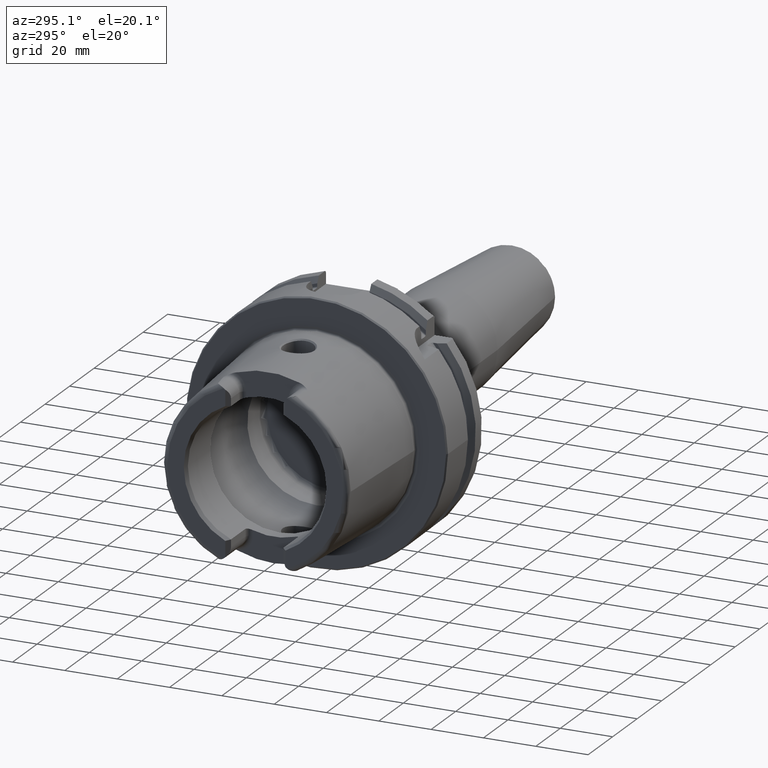
[diagram: clean part render]
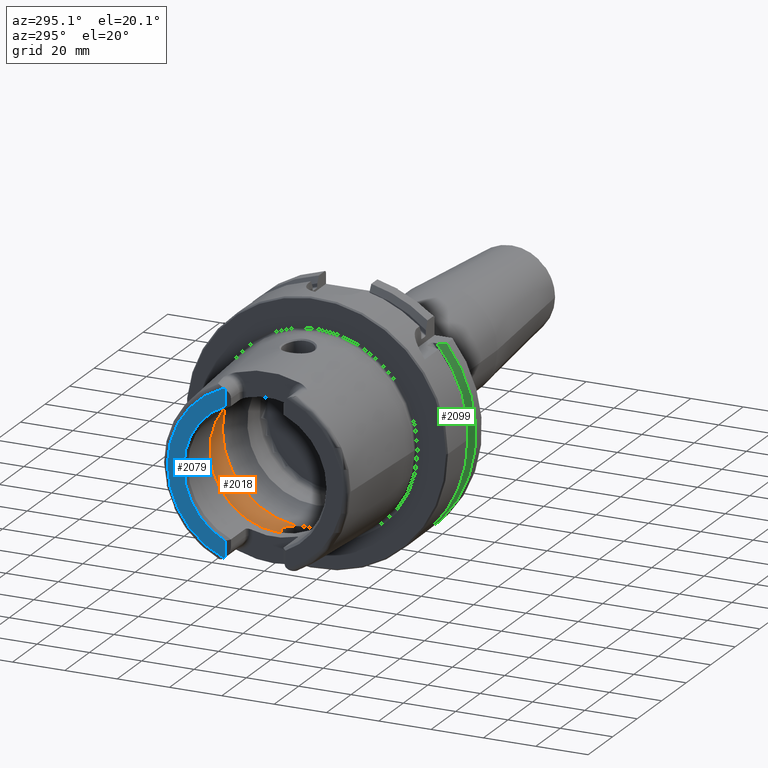
[diagram: same view with three faces highlighted in distinct colors, each labeled with its STEP entity id]
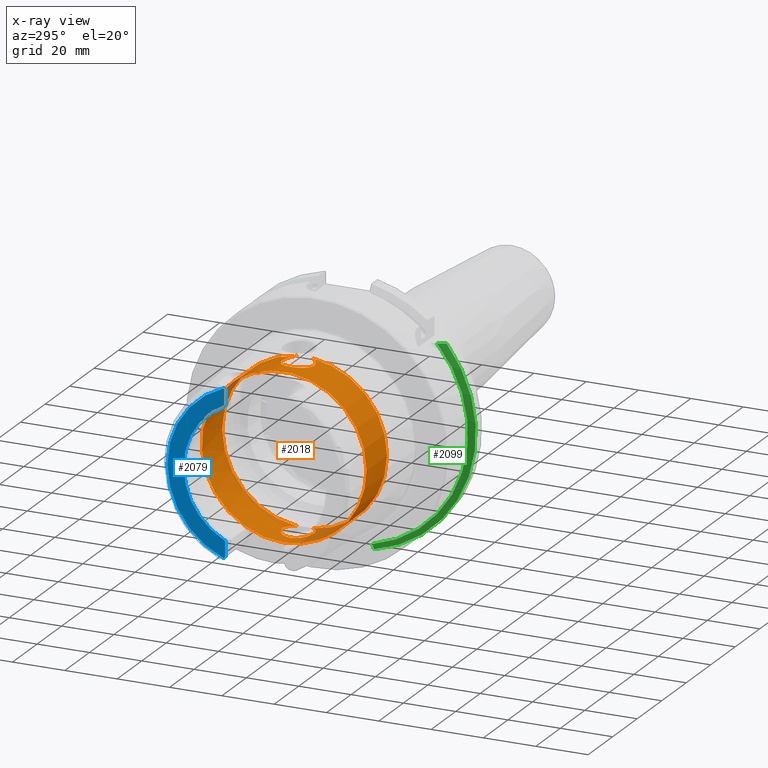
[diagram: x-ray of the same camera — body ghosted, the three highlighted faces saturated]
A machine part, auxiliary view with three faces highlighted in distinct colors.
The next image is the same camera in x-ray (body ghosted, the three faces saturated) — at least one of them is partly hidden behind the body in this view.
Their STEP definitions:

[orange] entity #2018 — the highlighted cylindrical surface (bore or boss wall) has radius 31.5 mm, axis along (-1, 0, 0).
#49=B_SPLINE_CURVE_WITH_KNOTS('',3,(#3595,#3596,#3597,#3598,#3599,#3600,
#3601,#3602,#3603,#3604,#3605,#3606,#3607,#3608,#3609,#3610,#3611,#3612,
#3613,#3614,#3615,#3616,#3617,#3618,#3619,#3620,#3621,#3622,#3623,#3624,
#3625),.UNSPECIFIED.,.F.,.F.,(4,2,2,2,2,2,2,2,2,2,2,3,2,2,4),(-2.42966289251045,
-2.26609494287567,-2.03948128472637,-1.81286762657707,-1.58625396842777,
-1.35964031027847,-1.1330370617835,-0.906433813288535,-0.679830564793567,
-0.453227316298599,-0.226613658149299,0.,0.2266136581493,0.453227316298599,
0.616795265988555),.UNSPECIFIED.);
#54=B_SPLINE_CURVE_WITH_KNOTS('',3,(#3787,#3788,#3789,#3790,#3791,#3792,
#3793,#3794,#3795,#3796,#3797,#3798,#3799,#3800,#3801,#3802,#3803,#3804,
#3805,#3806,#3807,#3808,#3809,#3810,#3811,#3812,#3813,#3814,#3815,#3816,
#3817),.UNSPECIFIED.,.F.,.F.,(4,2,2,3,2,2,2,2,2,2,2,2,2,2,4),(-0.616795265933374,
-0.453227316298598,-0.226613658149299,0.,0.2266136581493,0.453227316298599,
0.679830564793567,0.906433813288535,1.1330370617835,1.35964031027847,1.58625396842777,
1.81286762657707,2.03948128472637,2.26609494287567,2.42966289256562),
 .UNSPECIFIED.);
#183=CYLINDRICAL_SURFACE('',#2211,31.5);
#243=FACE_OUTER_BOUND('',#371,.T.);
#371=EDGE_LOOP('',(#1516,#1517,#1518,#1519,#1520,#1521,#1522,#1523,#1524));
#504=LINE('',#3833,#612);
#612=VECTOR('',#2604,31.5);
#719=CIRCLE('',#2212,31.5);
#720=CIRCLE('',#2213,31.5);
#721=CIRCLE('',#2214,31.5);
#722=CIRCLE('',#2215,31.5);
#723=CIRCLE('',#2216,31.5);
#894=VERTEX_POINT('',#3583);
#895=VERTEX_POINT('',#3594);
#898=VERTEX_POINT('',#3774);
#900=VERTEX_POINT('',#3786);
#901=VERTEX_POINT('',#3830);
#902=VERTEX_POINT('',#3832);
#903=VERTEX_POINT('',#3834);
#1127=EDGE_CURVE('',#895,#894,#49,.T.);
#1133=EDGE_CURVE('',#900,#898,#54,.T.);
#1136=EDGE_CURVE('',#901,#898,#719,.T.);
#1137=EDGE_CURVE('',#901,#902,#504,.T.);
#1138=EDGE_CURVE('',#902,#903,#720,.T.);
#1139=EDGE_CURVE('',#903,#902,#721,.T.);
#1140=EDGE_CURVE('',#895,#901,#722,.T.);
#1141=EDGE_CURVE('',#900,#894,#723,.T.);
#1516=ORIENTED_EDGE('',*,*,#1133,.T.);
#1517=ORIENTED_EDGE('',*,*,#1136,.F.);
#1518=ORIENTED_EDGE('',*,*,#1137,.T.);
#1519=ORIENTED_EDGE('',*,*,#1138,.T.);
#1520=ORIENTED_EDGE('',*,*,#1139,.T.);
#1521=ORIENTED_EDGE('',*,*,#1137,.F.);
#1522=ORIENTED_EDGE('',*,*,#1140,.F.);
#1523=ORIENTED_EDGE('',*,*,#1127,.T.);
#1524=ORIENTED_EDGE('',*,*,#1141,.F.);
#2018=ADVANCED_FACE('',(#243),#183,.F.);
#2211=AXIS2_PLACEMENT_3D('',#3829,#2600,#2601);
#2212=AXIS2_PLACEMENT_3D('',#3831,#2602,#2603);
#2213=AXIS2_PLACEMENT_3D('',#3835,#2605,#2606);
#2214=AXIS2_PLACEMENT_3D('',#3836,#2607,#2608);
#2215=AXIS2_PLACEMENT_3D('',#3837,#2609,#2610);
#2216=AXIS2_PLACEMENT_3D('',#3838,#2611,#2612);
#2600=DIRECTION('center_axis',(-1.,0.,0.));
#2601=DIRECTION('ref_axis',(0.,1.,0.));
#2602=DIRECTION('center_axis',(-1.,0.,0.));
#2603=DIRECTION('ref_axis',(0.,0.,1.));
#2604=DIRECTION('',(-1.,0.,0.));
#2605=DIRECTION('center_axis',(-1.,0.,0.));
#2606=DIRECTION('ref_axis',(0.,0.,1.));
#2607=DIRECTION('center_axis',(-1.,0.,0.));
#2608=DIRECTION('ref_axis',(0.,0.,1.));
#2609=DIRECTION('center_axis',(-1.,0.,0.));
#2610=DIRECTION('ref_axis',(0.,0.,1.));
#2611=DIRECTION('center_axis',(-1.,0.,0.));
#2612=DIRECTION('ref_axis',(0.,0.,1.));
#3583=CARTESIAN_POINT('',(-9.74679434480896,2.89893607109041,-31.3663222207471));
#3594=CARTESIAN_POINT('',(-9.74679434480896,-2.89893607109041,-31.3663222207471));
#3595=CARTESIAN_POINT('Ctrl Pts',(-9.74679434480898,-2.8989360710904,-31.3663222207471));
#3596=CARTESIAN_POINT('Ctrl Pts',(-10.0245557799842,-3.40227174537722,-31.3198029657389));
#3597=CARTESIAN_POINT('Ctrl Pts',(-10.3735944692601,-3.85887584349869,-31.2651415110221));
#3598=CARTESIAN_POINT('Ctrl Pts',(-11.289042660848,-4.77432403508655,-31.140708727458));
#3599=CARTESIAN_POINT('Ctrl Pts',(-11.9624834305428,-5.23577180141274,-31.0633803744766));
#3600=CARTESIAN_POINT('Ctrl Pts',(-13.4401908644727,-5.84865855662958,-30.9538382316308));
#3601=CARTESIAN_POINT('Ctrl Pts',(-14.2446211395023,-6.00000000000001,-30.9232921921325));
#3602=CARTESIAN_POINT('Ctrl Pts',(-15.7553788604977,-6.00000000000001,-30.9232921921325));
#3603=CARTESIAN_POINT('Ctrl Pts',(-16.5598091355273,-5.84865855662958,-30.9538382316308));
#3604=CARTESIAN_POINT('Ctrl Pts',(-18.0375165694572,-5.23577180141275,-31.0633803744766));
#3605=CARTESIAN_POINT('Ctrl Pts',(-18.710957339152,-4.77432403508655,-31.140708727458));
#3606=CARTESIAN_POINT('Ctrl Pts',(-19.7742996118461,-3.71098176239249,-31.2852440928545));
#3607=CARTESIAN_POINT('Ctrl Pts',(-20.2357665181958,-3.03753058698362,-31.3619556484746));
#3608=CARTESIAN_POINT('Ctrl Pts',(-20.8486671603361,-1.55978711209124,-31.4700797313679));
#3609=CARTESIAN_POINT('Ctrl Pts',(-21.,-0.755344161649895,-31.5));
#3610=CARTESIAN_POINT('Ctrl Pts',(-21.,0.755344161649892,-31.5));
#3611=CARTESIAN_POINT('Ctrl Pts',(-20.8486671603361,1.55978711209124,-31.4700797313679));
#3612=CARTESIAN_POINT('Ctrl Pts',(-20.2357665181958,3.03753058698362,-31.3619556484746));
#3613=CARTESIAN_POINT('Ctrl Pts',(-19.7742996118461,3.71098176239249,-31.2852440928545));
#3614=CARTESIAN_POINT('Ctrl Pts',(-18.710957339152,4.77432403508655,-31.140708727458));
#3615=CARTESIAN_POINT('Ctrl Pts',(-18.0375165694572,5.23577180141274,-31.0633803744766));
#3616=CARTESIAN_POINT('Ctrl Pts',(-16.5598091355273,5.84865855662958,-30.9538382316308));
#3617=CARTESIAN_POINT('Ctrl Pts',(-15.7553788604977,6.00000000000001,-30.9232921921325));
#3618=CARTESIAN_POINT('Ctrl Pts',(-15.,6.00000000000001,-30.9232921921325));
#3619=CARTESIAN_POINT('Ctrl Pts',(-14.2446211395023,6.00000000000001,-30.9232921921325));
#3620=CARTESIAN_POINT('Ctrl Pts',(-13.4401908644727,5.84865855662958,-30.9538382316308));
#3621=CARTESIAN_POINT('Ctrl Pts',(-11.9624834305428,5.23577180141274,-31.0633803744766));
#3622=CARTESIAN_POINT('Ctrl Pts',(-11.289042660848,4.77432403508655,-31.140708727458));
#3623=CARTESIAN_POINT('Ctrl Pts',(-10.3735944691306,3.85887584336922,-31.2651415110397));
#3624=CARTESIAN_POINT('Ctrl Pts',(-10.0245557801354,3.40227174565105,-31.3198029657135));
#3625=CARTESIAN_POINT('Ctrl Pts',(-9.74679434480898,2.8989360710904,-31.3663222207471));
#3774=CARTESIAN_POINT('',(-9.74679434480896,-2.89893607109042,31.3663222207471));
#3786=CARTESIAN_POINT('',(-9.74679434480896,2.89893607109042,31.3663222207471));
#3787=CARTESIAN_POINT('Ctrl Pts',(-9.74679434480897,2.89893607109041,31.3663222207471));
#3788=CARTESIAN_POINT('Ctrl Pts',(-10.0245557799842,3.40227174537723,31.3198029657389));
#3789=CARTESIAN_POINT('Ctrl Pts',(-10.3735944692601,3.85887584349869,31.2651415110221));
#3790=CARTESIAN_POINT('Ctrl Pts',(-11.289042660848,4.77432403508655,31.140708727458));
#3791=CARTESIAN_POINT('Ctrl Pts',(-11.9624834305428,5.23577180141274,31.0633803744766));
#3792=CARTESIAN_POINT('Ctrl Pts',(-13.4401908644727,5.84865855662958,30.9538382316308));
#3793=CARTESIAN_POINT('Ctrl Pts',(-14.2446211395023,6.00000000000001,30.9232921921325));
#3794=CARTESIAN_POINT('Ctrl Pts',(-15.,6.00000000000001,30.9232921921325));
#3795=CARTESIAN_POINT('Ctrl Pts',(-15.7553788604977,6.00000000000001,30.9232921921325));
#3796=CARTESIAN_POINT('Ctrl Pts',(-16.5598091355273,5.84865855662958,30.9538382316308));
#3797=CARTESIAN_POINT('Ctrl Pts',(-18.0375165694572,5.23577180141274,31.0633803744766));
#3798=CARTESIAN_POINT('Ctrl Pts',(-18.710957339152,4.77432403508655,31.140708727458));
#3799=CARTESIAN_POINT('Ctrl Pts',(-19.7742996118461,3.71098176239249,31.2852440928545));
#3800=CARTESIAN_POINT('Ctrl Pts',(-20.2357665181958,3.03753058698362,31.3619556484746));
#3801=CARTESIAN_POINT('Ctrl Pts',(-20.8486671603361,1.55978711209124,31.4700797313679));
#3802=CARTESIAN_POINT('Ctrl Pts',(-21.,0.755344161649892,31.5));
#3803=CARTESIAN_POINT('Ctrl Pts',(-21.,-0.755344161649894,31.5));
#3804=CARTESIAN_POINT('Ctrl Pts',(-20.8486671603361,-1.55978711209124,31.4700797313679));
#3805=CARTESIAN_POINT('Ctrl Pts',(-20.2357665181958,-3.03753058698362,31.3619556484746));
#3806=CARTESIAN_POINT('Ctrl Pts',(-19.7742996118461,-3.71098176239249,31.2852440928545));
#3807=CARTESIAN_POINT('Ctrl Pts',(-18.710957339152,-4.77432403508655,31.140708727458));
#3808=CARTESIAN_POINT('Ctrl Pts',(-18.0375165694572,-5.23577180141274,31.0633803744766));
#3809=CARTESIAN_POINT('Ctrl Pts',(-16.5598091355273,-5.84865855662958,30.9538382316308));
#3810=CARTESIAN_POINT('Ctrl Pts',(-15.7553788604977,-6.00000000000001,30.9232921921325));
#3811=CARTESIAN_POINT('Ctrl Pts',(-14.2446211395023,-6.00000000000001,30.9232921921325));
#3812=CARTESIAN_POINT('Ctrl Pts',(-13.4401908644727,-5.84865855662958,30.9538382316308));
#3813=CARTESIAN_POINT('Ctrl Pts',(-11.9624834305428,-5.23577180141274,31.0633803744766));
#3814=CARTESIAN_POINT('Ctrl Pts',(-11.289042660848,-4.77432403508655,31.140708727458));
#3815=CARTESIAN_POINT('Ctrl Pts',(-10.3735944691306,-3.85887584336922,31.2651415110397));
#3816=CARTESIAN_POINT('Ctrl Pts',(-10.0245557801353,-3.40227174565106,31.3198029657135));
#3817=CARTESIAN_POINT('Ctrl Pts',(-9.74679434480897,-2.89893607109041,31.3663222207471));
#3829=CARTESIAN_POINT('Origin',(-18.1430342013226,0.,0.));
#3830=CARTESIAN_POINT('',(-9.74679434480896,-31.5,3.85763741731416E-15));
#3831=CARTESIAN_POINT('Origin',(-9.74679434480896,0.,0.));
#3832=CARTESIAN_POINT('',(-26.5392740578363,-31.5,3.85763741731416E-15));
#3833=CARTESIAN_POINT('',(-18.1430342013226,-31.5,3.85763741731416E-15));
#3834=CARTESIAN_POINT('',(-26.5392740578363,-3.85763741731416E-15,-31.5));
#3835=CARTESIAN_POINT('Origin',(-26.5392740578363,0.,0.));
#3836=CARTESIAN_POINT('Origin',(-26.5392740578363,0.,0.));
#3837=CARTESIAN_POINT('Origin',(-9.74679434480896,0.,0.));
#3838=CARTESIAN_POINT('Origin',(-9.74679434480896,0.,0.));

[blue] entity #2079 — the highlighted planar face has unit normal (-1, 0, 0).
#129=PLANE('',#2333);
#304=FACE_OUTER_BOUND('',#433,.T.);
#433=EDGE_LOOP('',(#1861,#1862,#1863,#1864,#1865,#1866));
#482=LINE('',#3120,#590);
#494=LINE('',#3231,#602);
#590=VECTOR('',#2502,10.);
#602=VECTOR('',#2562,10.);
#701=CIRCLE('',#2175,4.88);
#712=CIRCLE('',#2200,4.88);
#776=CIRCLE('',#2325,27.3660254037844);
#777=CIRCLE('',#2329,33.6001839277785);
#842=VERTEX_POINT('',#3113);
#845=VERTEX_POINT('',#3118);
#848=VERTEX_POINT('',#3128);
#869=VERTEX_POINT('',#3228);
#870=VERTEX_POINT('',#3230);
#875=VERTEX_POINT('',#3249);
#1063=EDGE_CURVE('',#845,#842,#482,.T.);
#1067=EDGE_CURVE('',#848,#842,#701,.T.);
#1094=EDGE_CURVE('',#869,#870,#494,.T.);
#1101=EDGE_CURVE('',#869,#875,#712,.T.);
#1289=EDGE_CURVE('',#870,#845,#776,.T.);
#1291=EDGE_CURVE('',#848,#875,#777,.T.);
#1861=ORIENTED_EDGE('',*,*,#1063,.F.);
#1862=ORIENTED_EDGE('',*,*,#1289,.F.);
#1863=ORIENTED_EDGE('',*,*,#1094,.F.);
#1864=ORIENTED_EDGE('',*,*,#1101,.T.);
#1865=ORIENTED_EDGE('',*,*,#1291,.F.);
#1866=ORIENTED_EDGE('',*,*,#1067,.T.);
#2079=ADVANCED_FACE('',(#304),#129,.T.);
#2175=AXIS2_PLACEMENT_3D('',#3129,#2510,#2511);
#2200=AXIS2_PLACEMENT_3D('',#3262,#2571,#2572);
#2325=AXIS2_PLACEMENT_3D('',#4445,#2883,#2884);
#2329=AXIS2_PLACEMENT_3D('',#4450,#2892,#2893);
#2333=AXIS2_PLACEMENT_3D('',#4457,#2901,#2902);
#2502=DIRECTION('',(0.,0.,-1.));
#2510=DIRECTION('center_axis',(-1.,0.,0.));
#2511=DIRECTION('ref_axis',(0.,-0.477884921181368,0.878422450821629));
#2562=DIRECTION('',(0.,0.,-1.));
#2571=DIRECTION('center_axis',(-1.,0.,0.));
#2572=DIRECTION('ref_axis',(0.,1.,0.));
#2883=DIRECTION('center_axis',(-1.,0.,0.));
#2884=DIRECTION('ref_axis',(0.,-1.,0.));
#2892=DIRECTION('center_axis',(1.,0.,0.));
#2893=DIRECTION('ref_axis',(0.,0.,-1.));
#2901=DIRECTION('center_axis',(-1.,0.,0.));
#2902=DIRECTION('ref_axis',(0.,0.,1.));
#3113=CARTESIAN_POINT('',(-50.,11.51,-30.8899431813596));
#3118=CARTESIAN_POINT('',(-50.,11.51,-24.8277918148307));
#3120=CARTESIAN_POINT('',(-50.,11.51,-10.));
#3128=CARTESIAN_POINT('',(-50.,12.0743049948301,-31.355757348091));
#3129=CARTESIAN_POINT('Origin',(-50.,14.89,-27.37));
#3228=CARTESIAN_POINT('',(-50.,11.51,30.8899431813596));
#3230=CARTESIAN_POINT('',(-50.,11.51,24.8277918148307));
#3231=CARTESIAN_POINT('',(-50.,11.51,13.685));
#3249=CARTESIAN_POINT('',(-50.,12.0743049948301,31.355757348091));
#3262=CARTESIAN_POINT('Origin',(-50.,14.89,27.37));
#4445=CARTESIAN_POINT('Origin',(-50.,0.,0.));
#4450=CARTESIAN_POINT('Origin',(-50.,0.,0.));
#4457=CARTESIAN_POINT('Origin',(-50.,33.6001839277785,0.));

[green] entity #2099 — the highlighted conical surface has half-angle 60 deg.
#20=(
BOUNDED_CURVE()
B_SPLINE_CURVE(2,(#4000,#4001,#4002),.UNSPECIFIED.,.F.,.F.)
B_SPLINE_CURVE_WITH_KNOTS((3,3),(0.,0.343884390880419),.UNSPECIFIED.)
CURVE()
GEOMETRIC_REPRESENTATION_ITEM()
RATIONAL_B_SPLINE_CURVE((1.,1.00052016257005,1.))
REPRESENTATION_ITEM('')
);
#25=(
BOUNDED_CURVE()
B_SPLINE_CURVE(2,(#4215,#4216,#4217),.UNSPECIFIED.,.F.,.F.)
B_SPLINE_CURVE_WITH_KNOTS((3,3),(0.,0.28292349080556),.UNSPECIFIED.)
CURVE()
GEOMETRIC_REPRESENTATION_ITEM()
RATIONAL_B_SPLINE_CURVE((1.,1.0003193410929,1.))
REPRESENTATION_ITEM('')
);
#324=FACE_OUTER_BOUND('',#457,.T.);
#457=EDGE_LOOP('',(#1946,#1947,#1948,#1949));
#751=CIRCLE('',#2271,50.);
#803=CIRCLE('',#2376,47.5975952641917);
#929=VERTEX_POINT('',#3997);
#930=VERTEX_POINT('',#3999);
#964=VERTEX_POINT('',#4212);
#965=VERTEX_POINT('',#4214);
#1173=EDGE_CURVE('',#930,#929,#20,.T.);
#1223=EDGE_CURVE('',#965,#964,#25,.T.);
#1239=EDGE_CURVE('',#930,#964,#751,.T.);
#1324=EDGE_CURVE('',#929,#965,#803,.T.);
#1946=ORIENTED_EDGE('',*,*,#1173,.T.);
#1947=ORIENTED_EDGE('',*,*,#1324,.T.);
#1948=ORIENTED_EDGE('',*,*,#1223,.T.);
#1949=ORIENTED_EDGE('',*,*,#1239,.F.);
#1981=CONICAL_SURFACE('',#2377,48.7987976320958,1.0471975511966);
#2099=ADVANCED_FACE('',(#324),#1981,.T.);
#2271=AXIS2_PLACEMENT_3D('',#4277,#2759,#2760);
#2376=AXIS2_PLACEMENT_3D('',#4521,#2993,#2994);
#2377=AXIS2_PLACEMENT_3D('',#4522,#2995,#2996);
#2759=DIRECTION('center_axis',(1.,0.,0.));
#2760=DIRECTION('ref_axis',(0.,0.,-1.));
#2993=DIRECTION('center_axis',(1.,0.,0.));
#2994=DIRECTION('ref_axis',(0.,0.,-1.));
#2995=DIRECTION('center_axis',(1.,0.,0.));
#2996=DIRECTION('ref_axis',(0.,-0.951449961441176,-0.307803461438603));
#3997=CARTESIAN_POINT('',(21.875,-35.6830642593065,31.5));
#3999=CARTESIAN_POINT('',(23.2620290209214,-38.8297566307078,31.5));
#4000=CARTESIAN_POINT('Ctrl Pts',(23.2620290209214,-38.8297566307078,31.5));
#4001=CARTESIAN_POINT('Ctrl Pts',(22.5392272442767,-37.2176818849707,31.5));
#4002=CARTESIAN_POINT('Ctrl Pts',(21.875,-35.6830642593065,31.5));
#4212=CARTESIAN_POINT('',(23.2620290209214,-11.,-48.7749935930288));
#4214=CARTESIAN_POINT('',(21.875,-11.,-46.3090819919138));
#4215=CARTESIAN_POINT('Ctrl Pts',(21.875,-11.,-46.3090819919138));
#4216=CARTESIAN_POINT('Ctrl Pts',(22.5505288964237,-11.,-47.5116880808802));
#4217=CARTESIAN_POINT('Ctrl Pts',(23.2620290209214,-11.,-48.7749935930288));
#4277=CARTESIAN_POINT('Origin',(23.2620290209214,0.,0.));
#4521=CARTESIAN_POINT('Origin',(21.875,0.,0.));
#4522=CARTESIAN_POINT('Origin',(22.5685145104607,0.,0.));